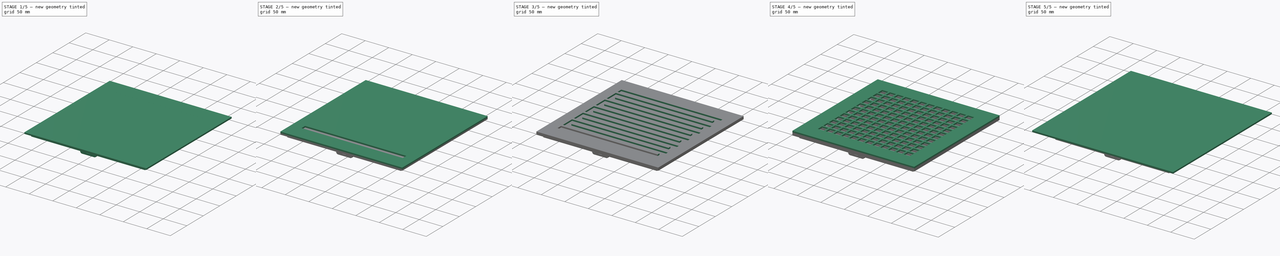
[diagram: build sequence overview — one tinted view per stage of 5, left to right]
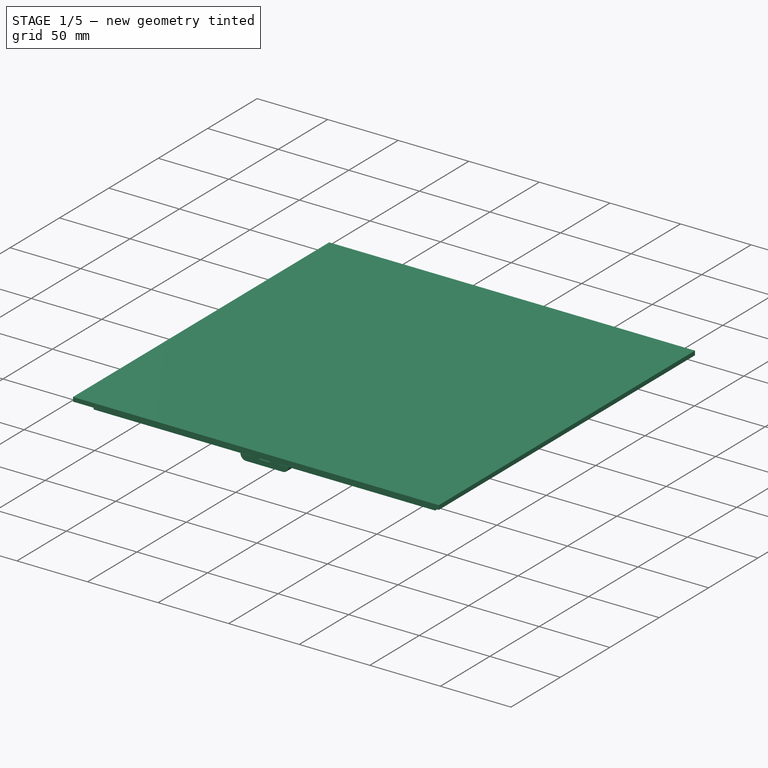
[diagram: stage 1 of 5 — iso view after this stage's code; geometry added in this stage tinted green]
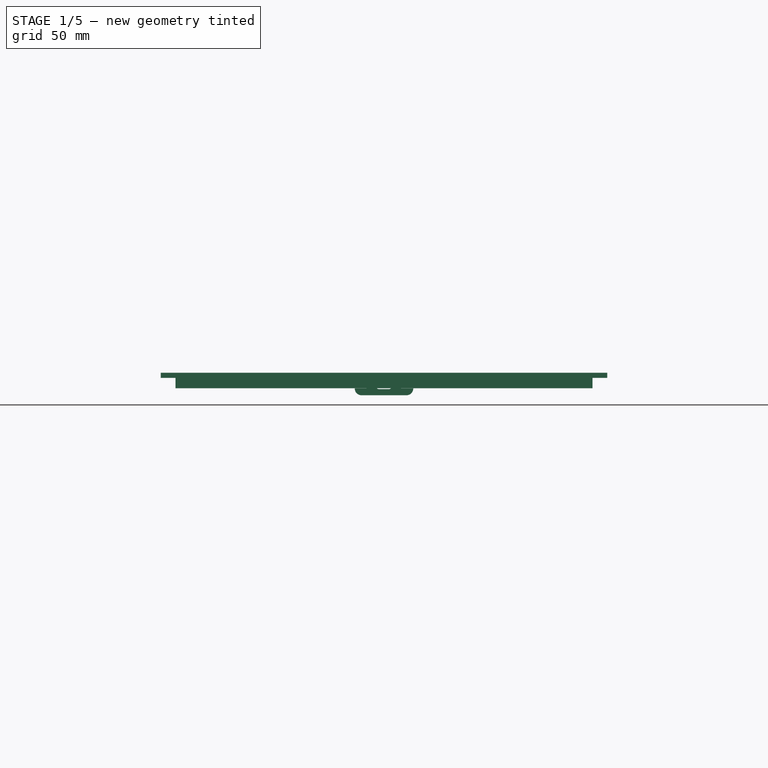
[diagram: stage 1 of 5 — front view after this stage's code; geometry added in this stage tinted green]
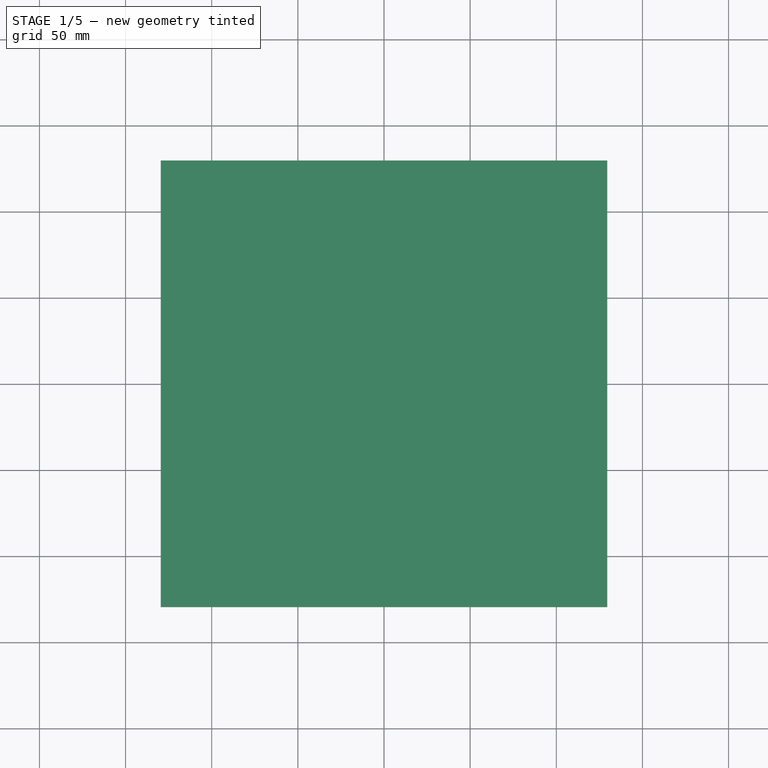
[diagram: stage 1 of 5 — top view after this stage's code; geometry added in this stage tinted green]
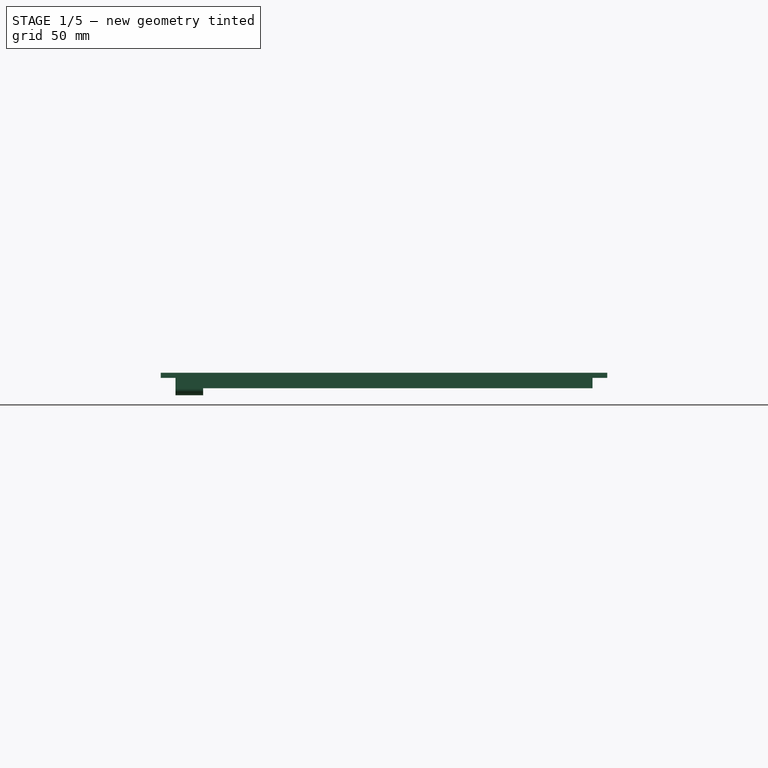
[diagram: stage 1 of 5 — right view after this stage's code; geometry added in this stage tinted green]
FCSTD DOCUMENT  (FreeCAD 0.20R29603 (Git))
Label: WordclockV2
License: All rights reserved
LicenseURL: http://en.wikipedia.org/wiki/All_rights_reserved
objects: Sketcher::SketchObject×17, Part::Part2DObjectPython×14, PartDesign::Pocket×9, PartDesign::Pad×8, PartDesign::Body×8, PartDesign::LinearPattern×8, PartDesign::MultiTransform×3, App::DocumentObjectGroup×3, Spreadsheet::Sheet×1, Part::FeaturePython×1
note: 84 computed .brp shape members not serialized (recipe doc carries the construction recipe); baked Part::Feature solids carry a one-line shape summary decoded from their .brp

FEATURE [Sketcher::SketchObject] Sketch007
  AttachmentOffset = pos=(0,0,-9) rot=(0,0,1;0rad)
  FullyConstrained = true
  MapMode = 5
  Placement = pos=(0,0,-9) rot=(0,0,1;0rad)
  Support = -> [XY_Plane004]
  expr: .Constraints.side = Spreadsheet.num_leds * Spreadsheet.led_gap + 2 * Spreadsheet.back_panel_padding
  expr: Constraints[10] = .Constraints.side / 2
  expr: Constraints[11] = .Constraints.side / 2
  sketch-geometry (4):
    g0: LineSegment StartX=129.6 StartY=-129.6 StartZ=0 EndX=-129.6 EndY=-129.6 EndZ=0
    g1: LineSegment StartX=-129.6 StartY=-129.6 StartZ=0 EndX=-129.6 EndY=129.6 EndZ=0
    g2: LineSegment StartX=-129.6 StartY=129.6 StartZ=0 EndX=129.6 EndY=129.6 EndZ=0
    g3: LineSegment StartX=129.6 StartY=129.6 StartZ=0 EndX=129.6 EndY=-129.6 EndZ=0
  constraints (12):
    c: Coincident(g0,g1)
    c: Coincident(g1,g2)
    c: Coincident(g2,g3)
    c: Coincident(g3,g0)
    c: Horizontal(g0)
    c: Horizontal(g2)
    c: Vertical(g1)
    c: Vertical(g3)
    c: Equal(g1,g2)
    c: DistanceX(g2,g2) = 259.2  'side'
    c: DistanceX(g0,g-1) = 129.6
    c: DistanceY(g-1,g2) = 129.6
FEATURE [PartDesign::Pad] Pad004
  Direction = (0,0,1)
  Length = 3
  Length2 = 10
  Profile = -> Sketch007
  ReferenceAxis = -> Sketch007 [N_Axis]
  Reversed = true
  Type = 0
FEATURE [Sketcher::SketchObject] Sketch008
  FullyConstrained = true
  MapMode = 5
  Support = -> [XY_Plane004]
  expr: .Constraints.origin = <<data_s>>.led_gap / 2 + (<<data_s>>.num_leds - 1) * <<data_s>>.led_gap / 2
  expr: Constraints[10] = <<data_s>>.led_strip_w / 2 + (<<data_s>>.num_leds - 1) * <<data_s>>.led_gap / 2
  expr: Constraints[11] = <<data_s>>.led_strip_w
  expr: Constraints[8] = <<data_s>>.led_gap * <<data_s>>.num_leds
  sketch-geometry (4):
    g0: LineSegment StartX=-99.6 StartY=96.3 StartZ=0 EndX=99.6 EndY=96.3 EndZ=0
    g1: LineSegment StartX=99.6 StartY=96.3 StartZ=0 EndX=99.6 EndY=86.3 EndZ=0
    g2: LineSegment StartX=99.6 StartY=86.3 StartZ=0 EndX=-99.6 EndY=86.3 EndZ=0
    g3: LineSegment StartX=-99.6 StartY=86.3 StartZ=0 EndX=-99.6 EndY=96.3 EndZ=0
  constraints (12):
    c: Coincident(g0,g1)
    c: Coincident(g1,g2)
    c: Coincident(g2,g3)
    c: Coincident(g3,g0)
    c: Horizontal(g0)
    c: Horizontal(g2)
    c: Vertical(g1)
    c: Vertical(g3)
    c: DistanceX(g2,g2) = 199.2
    c: DistanceX(g0,g-1) = 99.6  'origin'
    c: DistanceY(g-1,g0) = 96.3
    c: DistanceY(g1,g1) = 10
FEATURE [PartDesign::Pocket] Pocket003
  BaseFeature = -> Pad004
  Direction = (0,0,-1)
  Length = 5
  Length2 = 5
  Offset = 0.01
  Profile = -> Sketch008
  ReferenceAxis = -> Sketch008 [N_Axis]
  Type = 2
FEATURE [PartDesign::Body] Body004  label="plate_leds"
  Group = -> [Sketch007,Pad004,Sketch008,Pocket003,LinearPattern005,Sketch013,Pocket008]
  Origin = -> Origin004
  Tip = -> Pocket008
FEATURE [Part::Part2DObjectPython] Shape2DView001  # Draft 2D object (typed FeaturePython)
  AutoUpdate = true
  Base = -> Body004
  Clip = false
  FuseArch = false
  HiddenLines = false
  InPlace = true
  OnlySolids = false
  Placement = pos=(-631.07,52.85,0) rot=(0,0,1;0rad)
  Projection = (0,0,1)
  ProjectionMode = 0
  SegmentLength = 0.05
  Tessellation = false
  VisibleOnly = false
FEATURE [Part::Part2DObjectPython] Shape2DView003  # Draft 2D object (typed FeaturePython)
  AutoUpdate = true
  Base = -> Body002
  Clip = false
  FuseArch = false
  HiddenLines = false
  InPlace = true
  OnlySolids = false
  Placement = pos=(-631.221,316.119,-5.09646e-06) rot=(0,0,1;0rad)
  Projection = (0,8.74228e-08,-1)
  ProjectionMode = 0
  SegmentLength = 0.05
  Tessellation = false
  VisibleOnly = false
FEATURE [Sketcher::SketchObject] Sketch014
  AttachmentOffset = pos=(0,0,-12) rot=(0,0,1;0rad)
  FullyConstrained = true
  MapMode = 5
  Placement = pos=(0,0,-12) rot=(0,0,1;0rad)
  Support = -> [XY_Plane005]
  expr: Constraints[11] = <<data_s>>.screw_diameter
  expr: Constraints[12] = <<data_s>>.screw_dist
  expr: Constraints[13] = <<data_s>>.screw_dist
  sketch-geometry (16):
    g0: LineSegment StartX=-121 StartY=121 StartZ=0 EndX=121 EndY=121 EndZ=0
    g1: LineSegment StartX=121 StartY=121 StartZ=0 EndX=121 EndY=-121 EndZ=0
    g2: LineSegment StartX=121 StartY=-121 StartZ=0 EndX=-121 EndY=-121 EndZ=0
    g3: LineSegment StartX=-121 StartY=-121 StartZ=0 EndX=-121 EndY=121 EndZ=0
    g4: Circle CenterX=-112.5 CenterY=112.5 CenterZ=0 NormalX=0 NormalY=0 NormalZ=1 AngleXU=0 Radius=3
    g5: Circle CenterX=112.5 CenterY=112.5 CenterZ=0 NormalX=0 NormalY=0 NormalZ=1 AngleXU=0 Radius=3
    g6: Circle CenterX=-112.5 CenterY=-112.5 CenterZ=0 NormalX=0 NormalY=0 NormalZ=1 AngleXU=0 Radius=3
    g7: Circle CenterX=112.5 CenterY=-112.5 CenterZ=0 NormalX=0 NormalY=0 NormalZ=1 AngleXU=0 Radius=3
    g8: LineSegment StartX=-105 StartY=105 StartZ=0 EndX=-105 EndY=-105 EndZ=0
    g9: LineSegment StartX=-105 StartY=-105 StartZ=0 EndX=105 EndY=-105 EndZ=0
    g10: LineSegment StartX=105 StartY=-105 StartZ=0 EndX=105 EndY=105 EndZ=0
    g11: ArcOfCircle CenterX=-20 CenterY=105 CenterZ=0 NormalX=0 NormalY=0 NormalZ=1 AngleXU=0 Radius=5 StartAngle=1.5708 EndAngle=3.14159
    g12: ArcOfCircle CenterX=20 CenterY=105 CenterZ=0 NormalX=0 NormalY=0 NormalZ=1 AngleXU=0 Radius=5 StartAngle=4.716e-13 EndAngle=1.5708
    g13: LineSegment StartX=20 StartY=110 StartZ=0 EndX=-20 EndY=110 EndZ=0
    g14: LineSegment StartX=-105 StartY=105 StartZ=0 EndX=-25 EndY=105 EndZ=0
    g15: LineSegment StartX=25 StartY=105 StartZ=0 EndX=105 EndY=105 EndZ=0
  constraints (45):
    c: Coincident(g0,g1)
    c: Coincident(g1,g2)
    c: Coincident(g2,g3)
    c: Coincident(g3,g0)
    c: Horizontal(g0)
    c: Horizontal(g2)
    c: Vertical(g1)
    c: Vertical(g3)
    c: Equal(g0,g3)
    c: Distance(g0) = 242
    c: Symmetric(g0,g2,g-1)
    c: Diameter(g4) = 6
    c: DistanceX(g4,g-1) = 112.5
    c: DistanceY(g-1,g4) = 112.5
    c: Diameter(g5) = 6
    c: Diameter(g6) = 6
    c: Diameter(g7) = 6
    c: Coincident(g8,g9)
    c: Coincident(g9,g10)
    c: Horizontal(g9)
    c: Vertical(g8)
    c: Vertical(g10)
    c: Symmetric(g9,g8,g-1)
    c: Tangent(g12,g13) = -1.5708
    c: Tangent(g13,g11) = -1.5708
    c: Equal(g11,g12)
    c: Distance(g12,g12) = 5
    c: DistanceX(g-1,g12) = 20
    c: DistanceX(g11,g-1) = 20
    c: Symmetric(g7,g4,g-1)
    c: Horizontal(g5,g4)
    c: Vertical(g7,g5)
    c: Vertical(g4,g6)
    c: Horizontal(g6,g7)
    c: Distance(g8,g10) = 210
    c: Coincident(g14,g8)
    c: Coincident(g14,g11)
    c: Horizontal(g14)
    c: Coincident(g15,g12)
    c: Coincident(g15,g10)
    c: Horizontal(g15)
    c: Equal(g9,g8)
    c: Equal(g8,g10)
    c: Horizontal(g11,g11)
    c: Horizontal(g11,g12)
FEATURE [PartDesign::Pad] Pad005
  Direction = (0,0,1)
  Length = 3
  Length2 = 10
  Profile = -> Sketch014
  ReferenceAxis = -> Sketch014 [N_Axis]
  Reversed = true
  Type = 0
FEATURE [PartDesign::Body] Body005  label="back_frame_1"
  Group = -> [Sketch014,Pad005]
  Origin = -> Origin005
  Tip = -> Pad005
FEATURE [Part::Part2DObjectPython] Shape2DView004  # Draft 2D object (typed FeaturePython)
  AutoUpdate = true
  Base = -> Pad005
  Clip = false
  FaceNumbers = [13]
  FuseArch = false
  HiddenLines = false
  InPlace = true
  OnlySolids = false
  Placement = pos=(-628.696,578.623,5.05848e-05) rot=(0,0,1;0rad)
  Projection = (0,8.74228e-08,-1)
  ProjectionMode = 0
  SegmentLength = 0.05
  Tessellation = false
  VisibleOnly = false
FEATURE [Sketcher::SketchObject] Sketch015
  AttachmentOffset = pos=(0,0,-15) rot=(0,0,1;0rad)
  FullyConstrained = false
  MapMode = 5
  Placement = pos=(0,0,-15) rot=(0,0,1;0rad)
  Support = -> [XY_Plane006]
  expr: Constraints[11] = <<data_s>>.screw_diameter
  expr: Constraints[12] = <<data_s>>.screw_dist
  expr: Constraints[13] = <<data_s>>.screw_dist
  sketch-geometry (12):
    g0: LineSegment StartX=-121 StartY=121 StartZ=0 EndX=121 EndY=121 EndZ=0
    g1: LineSegment StartX=121 StartY=121 StartZ=0 EndX=121 EndY=-121 EndZ=0
    g2: LineSegment StartX=121 StartY=-121 StartZ=0 EndX=-121 EndY=-121 EndZ=0
    g3: LineSegment StartX=-121 StartY=-121 StartZ=0 EndX=-121 EndY=121 EndZ=0
    g4: Circle CenterX=-112.5 CenterY=112.5 CenterZ=0 NormalX=0 NormalY=0 NormalZ=1 AngleXU=0 Radius=3
    g5: Circle CenterX=112.5 CenterY=112.5 CenterZ=0 NormalX=0 NormalY=0 NormalZ=1 AngleXU=0 Radius=3
    g6: Circle CenterX=-112.5 CenterY=-112.5 CenterZ=0 NormalX=0 NormalY=0 NormalZ=1 AngleXU=0 Radius=3
    g7: Circle CenterX=112.5 CenterY=-112.5 CenterZ=0 NormalX=0 NormalY=0 NormalZ=1 AngleXU=0 Radius=3
    g8: LineSegment StartX=105 StartY=105 StartZ=0 EndX=-105 EndY=105 EndZ=0
    g9: LineSegment StartX=-105 StartY=105 StartZ=0 EndX=-105 EndY=-105 EndZ=0
    g10: LineSegment StartX=-105 StartY=-105 StartZ=0 EndX=105 EndY=-105 EndZ=0
    g11: LineSegment StartX=105 StartY=-105 StartZ=0 EndX=105 EndY=105 EndZ=0
  constraints (28):
    c: Coincident(g0,g1)
    c: Coincident(g1,g2)
    c: Coincident(g2,g3)
    c: Coincident(g3,g0)
    c: Horizontal(g0)
    c: Horizontal(g2)
    c: Vertical(g1)
    c: Vertical(g3)
    c: Equal(g0,g3)
    c: Distance(g0) = 242
    c: Symmetric(g0,g2,g-1)
    c: Diameter(g4) = 6
    c: DistanceX(g4,g-1) = 112.5
    c: DistanceY(g-1,g4) = 112.5
    c: Diameter(g5) = 6
    c: Diameter(g6) = 6
    c: Diameter(g7) = 6
    c: Coincident(g8,g9)
    c: Coincident(g9,g10)
    c: Coincident(g10,g11)
    c: Coincident(g11,g8)
    c: Horizontal(g8)
    c: Horizontal(g10)
    c: Vertical(g9)
    c: Vertical(g11)
    c: Distance(g8) = 210
    c: Equal(g8,g11)
    c: Symmetric(g10,g8,g-1)
FEATURE [PartDesign::Pad] Pad006
  Direction = (0,0,1)
  Length = 3
  Length2 = 10
  Profile = -> Sketch015
  ReferenceAxis = -> Sketch015 [N_Axis]
  Reversed = true
  Type = 0
FEATURE [PartDesign::Body] Body006  label="back_frame_2"
  Group = -> [Sketch015,Pad006]
  Origin = -> Origin006
  Tip = -> Pad006
FEATURE [Part::Part2DObjectPython] Shape2DView005  # Draft 2D object (typed FeaturePython)
  AutoUpdate = true
  Base = -> Body006
  Clip = false
  FuseArch = false
  HiddenLines = false
  InPlace = true
  OnlySolids = false
  Placement = pos=(-369.989,576.908,0) rot=(0,0,1;0rad)
  Projection = (0,0,1)
  ProjectionMode = 0
  SegmentLength = 0.05
  Tessellation = false
  VisibleOnly = false
FEATURE [Part::Part2DObjectPython] Shape2DView006  # Draft 2D object (typed FeaturePython)
  AutoUpdate = true
  Base = -> Body
  Clip = false
  FuseArch = false
  HiddenLines = false
  InPlace = true
  OnlySolids = false
  Projection = (0.57735,0.57735,0.57735)
  ProjectionMode = 0
  SegmentLength = 0.05
  Tessellation = false
  VisibleOnly = false
FEATURE [Part::Part2DObjectPython] Shape2DView007  # Draft 2D object (typed FeaturePython)
  AutoUpdate = true
  Base = -> Body001
  Clip = false
  FuseArch = false
  HiddenLines = false
  InPlace = true
  OnlySolids = false
  Projection = (0.57735,0.57735,0.57735)
  ProjectionMode = 0
  SegmentLength = 0.05
  Tessellation = false
  VisibleOnly = false
FEATURE [Part::Part2DObjectPython] Shape2DView008  # Draft 2D object (typed FeaturePython)
  AutoUpdate = true
  Base = -> Body002
  Clip = false
  FuseArch = false
  HiddenLines = false
  InPlace = true
  OnlySolids = false
  Projection = (0.57735,0.57735,0.57735)
  ProjectionMode = 0
  SegmentLength = 0.05
  Tessellation = false
  VisibleOnly = false
FEATURE [Part::Part2DObjectPython] Shape2DView009  # Draft 2D object (typed FeaturePython)
  AutoUpdate = true
  Base = -> Body003
  Clip = false
  FuseArch = false
  HiddenLines = false
  InPlace = true
  OnlySolids = false
  Projection = (0.57735,0.57735,0.57735)
  ProjectionMode = 0
  SegmentLength = 0.05
  Tessellation = false
  VisibleOnly = false
FEATURE [Part::Part2DObjectPython] Shape2DView010  # Draft 2D object (typed FeaturePython)
  AutoUpdate = true
  Base = -> Body004
  Clip = false
  FuseArch = false
  HiddenLines = false
  InPlace = true
  OnlySolids = false
  Projection = (0.57735,0.57735,0.57735)
  ProjectionMode = 0
  SegmentLength = 0.05
  Tessellation = false
  VisibleOnly = false
FEATURE [Part::Part2DObjectPython] Shape2DView011  # Draft 2D object (typed FeaturePython)
  AutoUpdate = true
  Base = -> Body005
  Clip = false
  FuseArch = false
  HiddenLines = false
  InPlace = true
  OnlySolids = false
  Projection = (0.57735,0.57735,0.57735)
  ProjectionMode = 0
  SegmentLength = 0.05
  Tessellation = false
  VisibleOnly = false
FEATURE [Part::Part2DObjectPython] Shape2DView012  # Draft 2D object (typed FeaturePython)
  AutoUpdate = true
  Base = -> Body006
  Clip = false
  FuseArch = false
  HiddenLines = false
  InPlace = true
  OnlySolids = false
  Projection = (0.57735,0.57735,0.57735)
  ProjectionMode = 0
  SegmentLength = 0.05
  Tessellation = false
  VisibleOnly = false
FEATURE [App::DocumentObjectGroup] Group001  label="Iso view export"
  Group = -> [Shape2DView006,Shape2DView007,Shape2DView008,Shape2DView009,Shape2DView010,Shape2DView011,Shape2DView012]
FEATURE [Sketcher::SketchObject] Sketch016
  AttachmentOffset = pos=(0,0,105) rot=(0,0,1;0rad)
  FullyConstrained = true
  MapMode = 5
  Placement = pos=(0,-105,2.33e-14) rot=(1,0,0;1.5708rad)
  Support = -> [XZ_Plane007]
  sketch-geometry (12):
    g0: LineSegment StartX=-10 StartY=-12 StartZ=0 EndX=10 EndY=-12 EndZ=0
    g1: LineSegment StartX=10 StartY=-12 StartZ=0 EndX=10 EndY=-18.1 EndZ=0
    g2: LineSegment StartX=10 StartY=-18.1 StartZ=0 EndX=17 EndY=-18.1 EndZ=0
    g3: LineSegment StartX=-10 StartY=-12 StartZ=0 EndX=-10 EndY=-18.1 EndZ=0
    g4: LineSegment StartX=-10 StartY=-18.1 StartZ=0 EndX=-17 EndY=-18.1 EndZ=0
    g5: ArcOfCircle CenterX=-13 CenterY=-18.1 CenterZ=0 NormalX=0 NormalY=0 NormalZ=1 AngleXU=0 Radius=4 StartAngle=3.14159 EndAngle=4.71239
    g6: ArcOfCircle CenterX=13 CenterY=-18.1 CenterZ=0 NormalX=0 NormalY=0 NormalZ=1 AngleXU=0 Radius=4 StartAngle=4.71239 EndAngle=6.28319
    g7: LineSegment StartX=-13 StartY=-22.1 StartZ=0 EndX=13 EndY=-22.1 EndZ=0
    g8: ArcOfCircle CenterX=-3 CenterY=-17 CenterZ=0 NormalX=0 NormalY=0 NormalZ=1 AngleXU=0 Radius=1.5 StartAngle=1.5708 EndAngle=4.71239
    g9: ArcOfCircle CenterX=3 CenterY=-17 CenterZ=0 NormalX=0 NormalY=0 NormalZ=1 AngleXU=0 Radius=1.5 StartAngle=4.71239 EndAngle=7.85398
    g10: LineSegment StartX=-3 StartY=-18.5 StartZ=0 EndX=3 EndY=-18.5 EndZ=0
    g11: LineSegment StartX=3 StartY=-15.5 StartZ=0 EndX=-3 EndY=-15.5 EndZ=0
  constraints (36):
    c: Horizontal(g0)
    c: Coincident(g1,g0)
    c: Coincident(g2,g1)
    c: Horizontal(g2)
    c: Coincident(g3,g0)
    c: Vertical(g3)
    c: Coincident(g4,g3)
    c: Horizontal(g4)
    c: PointOnObject(g5,g4)
    c: Coincident(g5,g4)
    c: Vertical(g5,g5)
    c: PointOnObject(g6,g2)
    c: Coincident(g6,g2)
    c: Vertical(g6,g6)
    c: Vertical(g1)
    c: Horizontal(g3,g1)
    c: Distance(g0) = 20
    c: Distance(g4) = 7
    c: Equal(g2,g4)
    c: Coincident(g7,g5)
    c: Coincident(g7,g6)
    c: Horizontal(g7)
    c: DistanceY(g6,g6) = 4
    c: Distance(g3) = 6.1
    c: Tangent(g8,g10) = -1.5708
    c: Tangent(g10,g9) = -1.5708
    c: Tangent(g9,g11) = -1.5708
    c: Tangent(g11,g8) = -1.5708
    c: Equal(g8,g9)
    c: Horizontal(g10)
    c: Distance(g9,g9) = 3
    c: DistanceY(g8,g0) = 5
    c: DistanceX(g0,g8) = 7
    c: Distance(g10) = 6
    c: DistanceY(g0,g-1) = 12
    c: DistanceX(g-1,g0) = 10
FEATURE [PartDesign::Pad] Pad007
  Direction = (0,-1,2e-16)
  Length = 16
  Length2 = 10
  Placement = pos=(0,0,0) rot=(1,0,0;1.5708rad)
  Profile = -> Sketch016
  ReferenceAxis = -> Sketch016 [N_Axis]
  Type = 0
FEATURE [PartDesign::Body] Body007  label="usb_pad"
  Group = -> [Sketch016,Pad007]
  Origin = -> Origin007
  Tip = -> Pad007
FEATURE [App::DocumentObjectGroup] Group002  label="Body"
  Group = -> [Body,Body001,Body002,Body003,Body004,Body005,Body006,Body007]
FEATURE [Part::Part2DObjectPython] Shape2DView013  label="usb_pad001"  # Draft 2D object (typed FeaturePython)
  AutoUpdate = true
  Base = -> Body007
  Clip = false
  FuseArch = false
  HiddenLines = false
  InPlace = true
  OnlySolids = false
  Projection = (7.4e-15,-1,1.68587e-07)
  ProjectionMode = 0
  SegmentLength = 0.05
  Tessellation = false
  VisibleOnly = false
FEATURE [Part::FeaturePython] Array  # Draft array (typed FeaturePython)
  AlwaysSyncPlacement = false
  Angle = 360
  ArrayType = 0
  Axis = (0,0,1)
  Base = -> Shape2DView013
  Center = (0,0,0)
  Count = 5
  ExpandArray = false
  Fuse = false
  IntervalAxis = (0,0,0)
  IntervalX = (12,0,0)
  IntervalY = (0,10,-1)
  IntervalZ = (0,0,100)
  NumberCircles = 3
  NumberPolar = 5
  NumberX = 5
  NumberY = 1
  NumberZ = 1
  PlacementList = 5 placements: arithmetic series from (0,0,0) step (12,0,0) to (48,0,0)
  RadialDistance = 50
  ScaleList = (5) [(1,1,1),(1,1,1),(1,1,1),(1,1,1),(1,1,1)]
  Symmetry = 1
  TangentialDistance = 25
FEATURE [App::DocumentObjectGroup] Group  label="Shapes for DXF export"
  Group = -> [Shape2DView,Shape2DView001,Shape2DView002,Shape2DView003,Shape2DView004,Shape2DView005,Shape2DView013,Array]
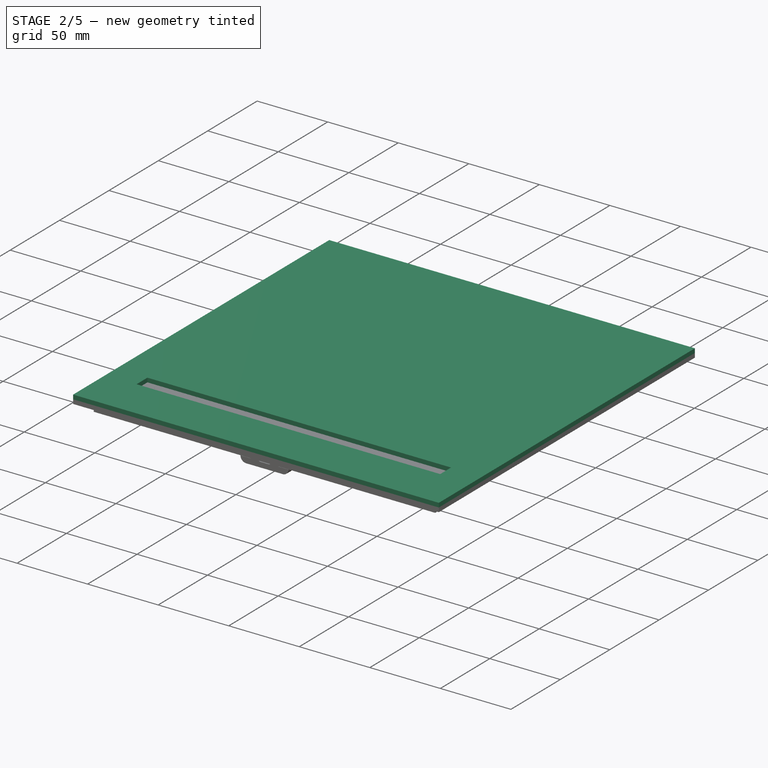
[diagram: stage 2 of 5 — iso view after this stage's code; geometry added in this stage tinted green]
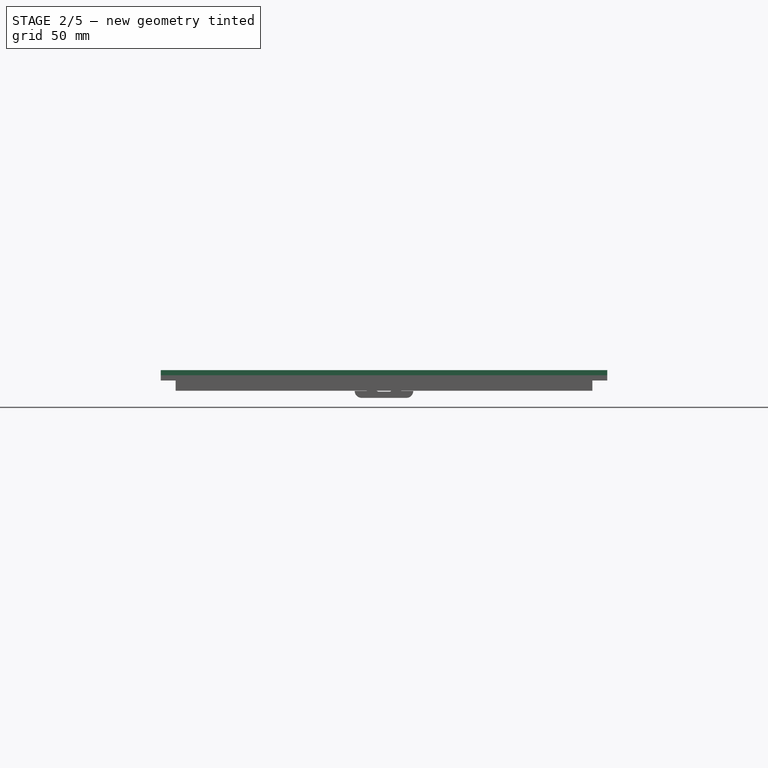
[diagram: stage 2 of 5 — front view after this stage's code; geometry added in this stage tinted green]
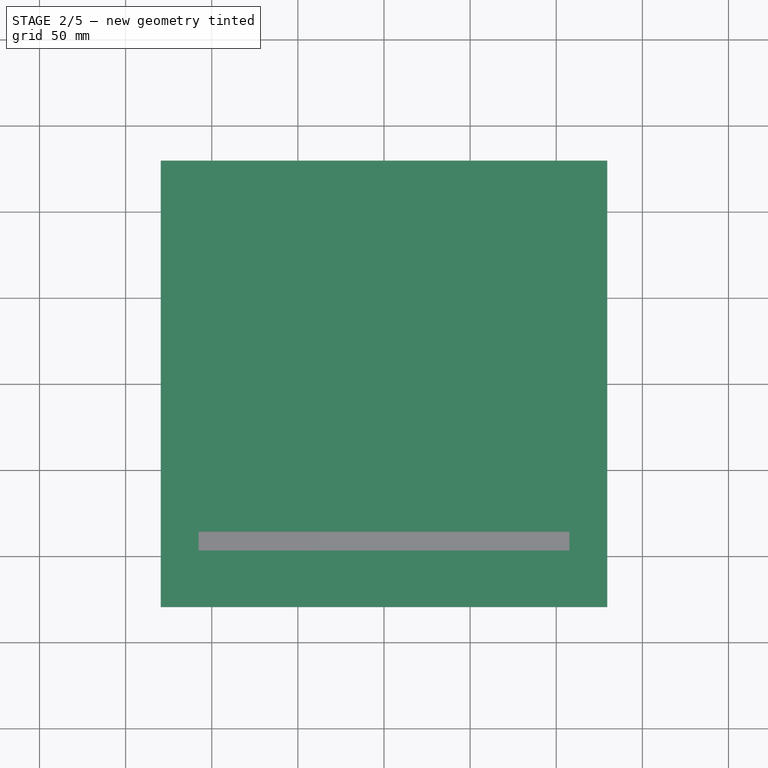
[diagram: stage 2 of 5 — top view after this stage's code; geometry added in this stage tinted green]
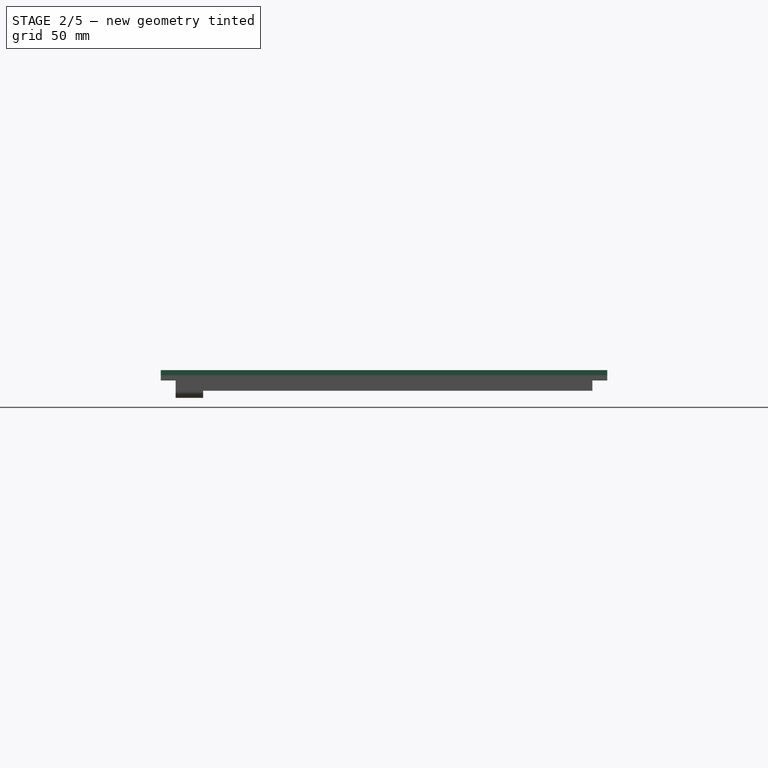
[diagram: stage 2 of 5 — right view after this stage's code; geometry added in this stage tinted green]
FEATURE [Sketcher::SketchObject] Sketch005
  AttachmentOffset = pos=(0,0,-6) rot=(0,0,1;0rad)
  FullyConstrained = true
  MapMode = 5
  Placement = pos=(0,0,-6) rot=(0,0,1;0rad)
  Support = -> [XY_Plane003]
  expr: .Constraints.side = Spreadsheet.num_leds * Spreadsheet.led_gap + 2 * Spreadsheet.back_panel_padding
  expr: Constraints[10] = .Constraints.side / 2
  expr: Constraints[11] = .Constraints.side / 2
  sketch-geometry (4):
    g0: LineSegment StartX=129.6 StartY=-129.6 StartZ=0 EndX=-129.6 EndY=-129.6 EndZ=0
    g1: LineSegment StartX=-129.6 StartY=-129.6 StartZ=0 EndX=-129.6 EndY=129.6 EndZ=0
    g2: LineSegment StartX=-129.6 StartY=129.6 StartZ=0 EndX=129.6 EndY=129.6 EndZ=0
    g3: LineSegment StartX=129.6 StartY=129.6 StartZ=0 EndX=129.6 EndY=-129.6 EndZ=0
  constraints (12):
    c: Coincident(g0,g1)
    c: Coincident(g1,g2)
    c: Coincident(g2,g3)
    c: Coincident(g3,g0)
    c: Horizontal(g0)
    c: Horizontal(g2)
    c: Vertical(g1)
    c: Vertical(g3)
    c: Equal(g1,g2)
    c: DistanceX(g2,g2) = 259.2  'side'
    c: DistanceX(g0,g-1) = 129.6
    c: DistanceY(g-1,g2) = 129.6
FEATURE [PartDesign::Pad] Pad003
  Direction = (0,0,1)
  Length = 3
  Length2 = 10
  Profile = -> Sketch005
  ReferenceAxis = -> Sketch005 [N_Axis]
  Reversed = true
  Type = 0
FEATURE [Sketcher::SketchObject] Sketch006
  FullyConstrained = true
  MapMode = 5
  Placement = pos=(0,0,-9) rot=(1,0,0;3.14159rad)
  Support = -> [Pad003]
  expr: .Constraints.origin = <<data_s>>.led_gap / 2 + (<<data_s>>.num_leds - 1) * <<data_s>>.led_gap / 2 + <<data_s>>.led_strip_end_pad
  expr: Constraints[10] = <<data_s>>.led_strip_w_pad / 2 + (<<data_s>>.num_leds - 1) * <<data_s>>.led_gap / 2
  expr: Constraints[11] = <<data_s>>.led_strip_w_pad
  expr: Constraints[8] = <<data_s>>.led_gap * <<data_s>>.num_leds + <<data_s>>.led_strip_end_pad * 2
  sketch-geometry (4):
    g0: LineSegment StartX=-107.6 StartY=96.8 StartZ=0 EndX=107.6 EndY=96.8 EndZ=0
    g1: LineSegment StartX=107.6 StartY=96.8 StartZ=0 EndX=107.6 EndY=85.8 EndZ=0
    g2: LineSegment StartX=107.6 StartY=85.8 StartZ=0 EndX=-107.6 EndY=85.8 EndZ=0
    g3: LineSegment StartX=-107.6 StartY=85.8 StartZ=0 EndX=-107.6 EndY=96.8 EndZ=0
  constraints (12):
    c: Coincident(g0,g1)
    c: Coincident(g1,g2)
    c: Coincident(g2,g3)
    c: Coincident(g3,g0)
    c: Horizontal(g0)
    c: Horizontal(g2)
    c: Vertical(g1)
    c: Vertical(g3)
    c: DistanceX(g2,g2) = 215.2
    c: DistanceX(g0,g-1) = 107.6  'origin'
    c: DistanceY(g-1,g0) = 96.8
    c: DistanceY(g1,g1) = 11
FEATURE [PartDesign::Pocket] Pocket002
  BaseFeature = -> Pad003
  Direction = (0,0,1)
  Length = 5
  Length2 = 5
  Profile = -> Sketch006
  ReferenceAxis = -> Sketch006 [N_Axis]
  Type = 1
FEATURE [PartDesign::LinearPattern] LinearPattern005
  BaseFeature = -> Pocket003
  Direction = -> Y_Axis004
  Length = 182.6
  Occurrences = 12
  Originals = -> [Pocket003]
  Reversed = true
  expr: Length = (<<data_s>>.num_leds - 1) * <<data_s>>.led_gap
  expr: Occurrences = <<data_s>>.num_leds
FEATURE [PartDesign::Body] Body003  label="plate_led_snake"
  Group = -> [Sketch005,Pad003,Sketch006,Pocket002,LinearPattern004,Sketch009,Pocket004,MultiTransform002,LinearPattern006,Sketch010,Pocket005,LinearPattern007,Sketch012,Pocket007]
  Origin = -> Origin003
  Tip = -> Pocket007
FEATURE [Part::Part2DObjectPython] Shape2DView002  # Draft 2D object (typed FeaturePython)
  AutoUpdate = true
  Base = -> Body003
  Clip = false
  FuseArch = false
  HiddenLines = false
  InPlace = true
  OnlySolids = false
  Placement = pos=(-367.682,320.128,0) rot=(0,0,1;0rad)
  Projection = (0,0,1)
  ProjectionMode = 0
  SegmentLength = 0.05
  Tessellation = false
  VisibleOnly = false
FEATURE [Sketcher::SketchObject] Sketch013
  FullyConstrained = true
  MapMode = 5
  Support = -> [XY_Plane004]
  expr: .Constraints.screw_dist = <<data_s>>.screw_dist
  expr: Constraints[0] = <<data_s>>.screw_diameter / 2
  expr: Constraints[10] = .Constraints.screw_dist
  expr: Constraints[11] = <<data_s>>.screw_diameter / 2
  expr: Constraints[2] = .Constraints.screw_dist
  expr: Constraints[3] = <<data_s>>.screw_diameter / 2
  expr: Constraints[4] = .Constraints.screw_dist
  expr: Constraints[5] = .Constraints.screw_dist
  expr: Constraints[7] = .Constraints.screw_dist
  expr: Constraints[8] = .Constraints.screw_dist
  expr: Constraints[9] = .Constraints.screw_dist
  sketch-geometry (4):
    g0: Circle CenterX=-112.5 CenterY=112.5 CenterZ=0 NormalX=0 NormalY=0 NormalZ=1 AngleXU=0 Radius=3
    g1: Circle CenterX=112.5 CenterY=112.5 CenterZ=0 NormalX=0 NormalY=0 NormalZ=1 AngleXU=0 Radius=3
    g2: Circle CenterX=112.5 CenterY=-112.5 CenterZ=0 NormalX=0 NormalY=0 NormalZ=1 AngleXU=0 Radius=3
    g3: Circle CenterX=-112.5 CenterY=-112.5 CenterZ=0 NormalX=0 NormalY=0 NormalZ=1 AngleXU=0 Radius=3
  constraints (12):
    c: Radius(g0) = 3
    c: DistanceX(g0,g-1) = 112.5  'screw_dist'
    c: DistanceY(g-1,g0) = 112.5
    c: Radius(g1) = 3
    c: DistanceX(g-1,g1) = 112.5
    c: DistanceY(g-1,g1) = 112.5
    c: Equal(g1,g2) = 3
    c: DistanceX(g-1,g2) = 112.5
    c: DistanceY(g2,g-1) = 112.5
    c: DistanceX(g3,g-1) = 112.5
    c: DistanceY(g3,g-1) = 112.5
    c: Radius(g3) = 3
FEATURE [PartDesign::Pocket] Pocket008
  BaseFeature = -> LinearPattern005
  Direction = (0,0,-1)
  Length = 5
  Length2 = 5
  Profile = -> Sketch013
  ReferenceAxis = -> Sketch013 [N_Axis]
  Type = 1
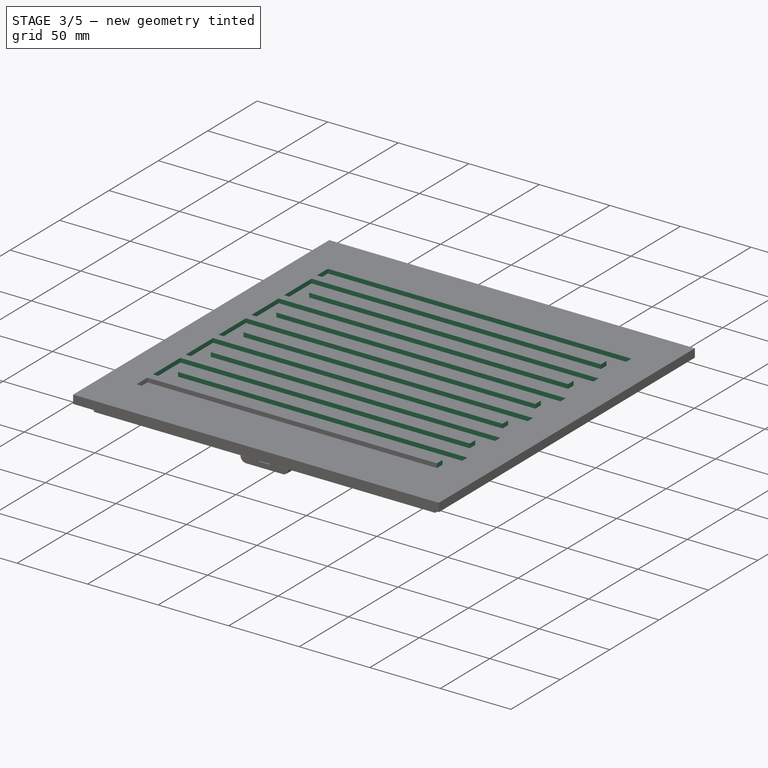
[diagram: stage 3 of 5 — iso view after this stage's code; geometry added in this stage tinted green]
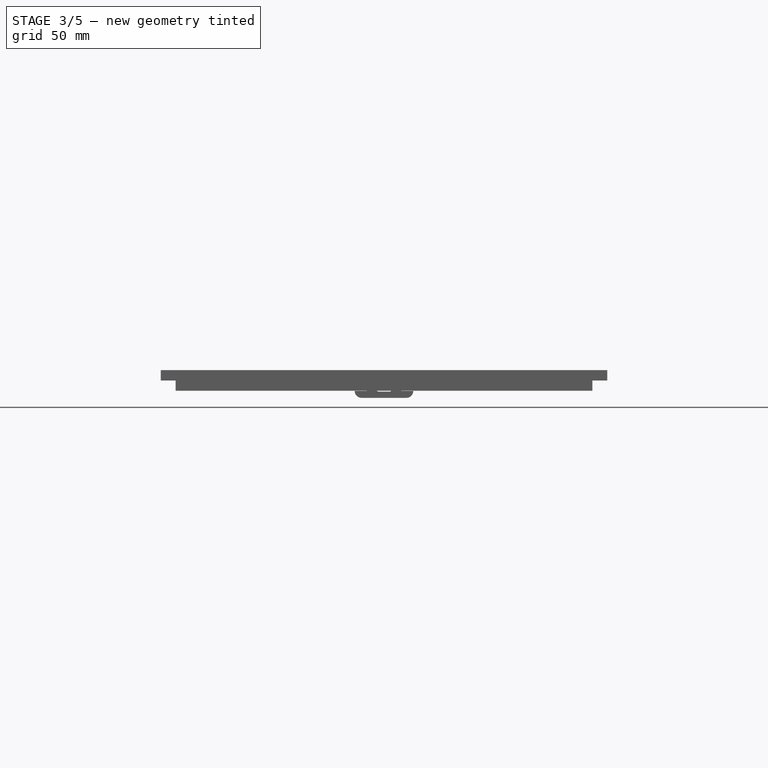
[diagram: stage 3 of 5 — front view after this stage's code; geometry added in this stage tinted green]
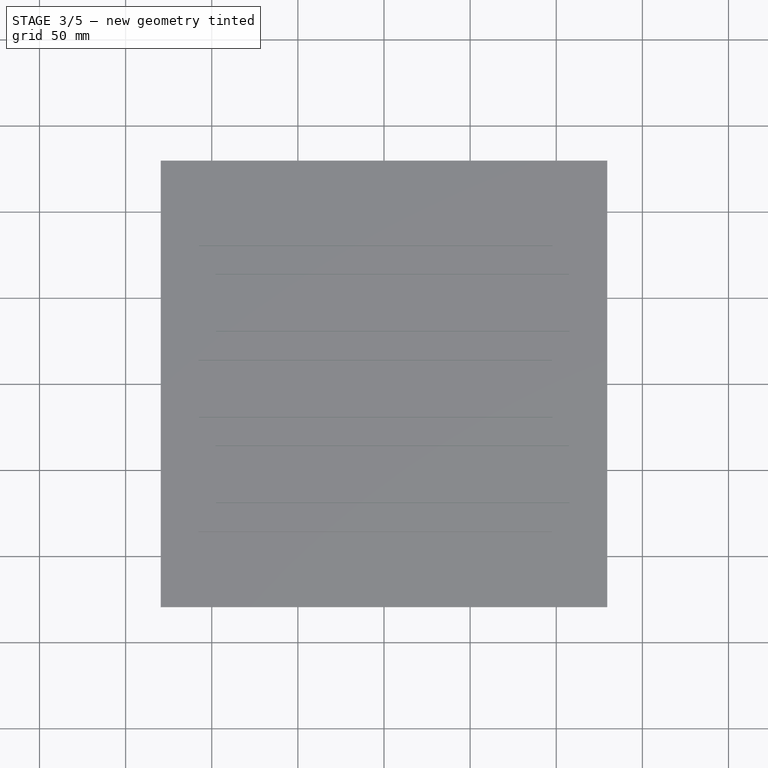
[diagram: stage 3 of 5 — top view after this stage's code; geometry added in this stage tinted green]
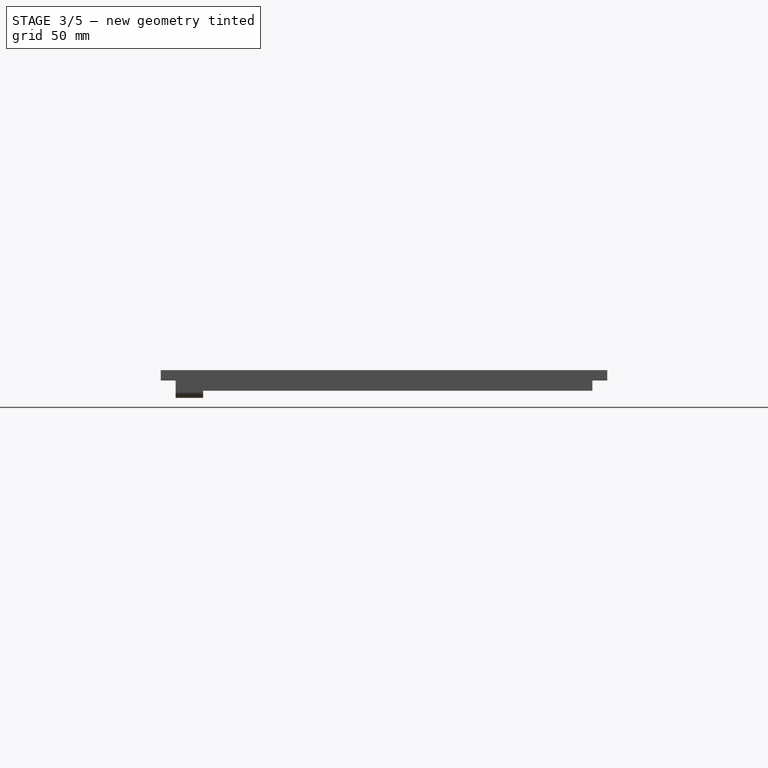
[diagram: stage 3 of 5 — right view after this stage's code; geometry added in this stage tinted green]
FEATURE [PartDesign::LinearPattern] LinearPattern004
  BaseFeature = -> Pocket002
  Direction = -> Y_Axis003
  Length = 182.6
  Occurrences = 12
  Originals = -> [Pocket002]
  expr: Length = (<<data_s>>.num_leds - 1) * <<data_s>>.led_gap
  expr: Occurrences = <<data_s>>.num_leds
FEATURE [Part::Part2DObjectPython] Shape2DView  # Draft 2D object (typed FeaturePython)
  AutoUpdate = true
  Base = -> Body001
  Clip = false
  FuseArch = false
  HiddenLines = false
  InPlace = true
  OnlySolids = false
  Placement = pos=(-367.98,53.99,0) rot=(0,0,1;0rad)
  Projection = (0,8.74228e-08,-1)
  ProjectionMode = 0
  SegmentLength = 0.05
  Tessellation = false
  VisibleOnly = false
FEATURE [Sketcher::SketchObject] Sketch009
  FullyConstrained = true
  MapMode = 5
  Support = -> [XY_Plane003]
  expr: Constraints[10] = <<data_s>>.led_strip_w_pad + <<data_s>>.led_gap
  expr: Constraints[11] = <<data_s>>.strip_end_thickness
  expr: Constraints[8] = <<data_s>>.led_gap / 2 + (<<data_s>>.num_leds - 1) * <<data_s>>.led_gap / 2 + <<data_s>>.led_strip_end_pad
  expr: Constraints[9] = <<data_s>>.led_strip_w_pad / 2 + (<<data_s>>.num_leds - 1) * <<data_s>>.led_gap / 2
  sketch-geometry (4):
    g0: LineSegment StartX=107.6 StartY=96.8 StartZ=0 EndX=97.6 EndY=96.8 EndZ=0
    g1: LineSegment StartX=97.6 StartY=96.8 StartZ=0 EndX=97.6 EndY=69.2 EndZ=0
    g2: LineSegment StartX=97.6 StartY=69.2 StartZ=0 EndX=107.6 EndY=69.2 EndZ=0
    g3: LineSegment StartX=107.6 StartY=69.2 StartZ=0 EndX=107.6 EndY=96.8 EndZ=0
  constraints (12):
    c: Coincident(g0,g1)
    c: Coincident(g1,g2)
    c: Coincident(g2,g3)
    c: Coincident(g3,g0)
    c: Horizontal(g0)
    c: Horizontal(g2)
    c: Vertical(g1)
    c: Vertical(g3)
    c: DistanceX(g-1,g0) = 107.6
    c: DistanceY(g-1,g0) = 96.8
    c: Distance(g3) = 27.6
    c: Distance(g2) = 10
FEATURE [PartDesign::Pocket] Pocket004
  BaseFeature = -> LinearPattern004
  Direction = (0,0,-1)
  Length = 5
  Length2 = 5
  Profile = -> Sketch009
  ReferenceAxis = -> Sketch009 [N_Axis]
  Type = 1
FEATURE [PartDesign::LinearPattern] LinearPattern006
  Direction = -> Sketch009 [V_Axis]
  Length = 166
  Occurrences = 6
  Reversed = true
  expr: Length = <<data_s>>.led_gap * 10
FEATURE [PartDesign::MultiTransform] MultiTransform002
  BaseFeature = -> Pocket004
  Originals = -> [Pocket004]
  Transformations = -> [LinearPattern006]
FEATURE [Sketcher::SketchObject] Sketch010
  FullyConstrained = true
  MapMode = 5
  Support = -> [XY_Plane003]
  expr: Constraints[10] = <<data_s>>.led_strip_w_pad + <<data_s>>.led_gap
  expr: Constraints[11] = <<data_s>>.strip_end_thickness
  expr: Constraints[8] = -(<<data_s>>.led_gap / 2 + (<<data_s>>.num_leds - 1) * <<data_s>>.led_gap / 2 + <<data_s>>.led_strip_end_pad)
  expr: Constraints[9] = <<data_s>>.led_strip_w_pad / 2 + (<<data_s>>.num_leds - 3) * <<data_s>>.led_gap / 2
  sketch-geometry (4):
    g0: LineSegment StartX=-107.6 StartY=80.2 StartZ=0 EndX=-97.6 EndY=80.2 EndZ=0
    g1: LineSegment StartX=-97.6 StartY=80.2 StartZ=0 EndX=-97.6 EndY=52.6 EndZ=0
    g2: LineSegment StartX=-97.6 StartY=52.6 StartZ=0 EndX=-107.6 EndY=52.6 EndZ=0
    g3: LineSegment StartX=-107.6 StartY=52.6 StartZ=0 EndX=-107.6 EndY=80.2 EndZ=0
  constraints (12):
    c: Coincident(g0,g1)
    c: Coincident(g1,g2)
    c: Coincident(g2,g3)
    c: Coincident(g3,g0)
    c: Horizontal(g0)
    c: Horizontal(g2)
    c: Vertical(g1)
    c: Vertical(g3)
    c: DistanceX(g-1,g0) = -107.6
    c: DistanceY(g-1,g0) = 80.2
    c: Distance(g3) = 27.6
    c: Distance(g2) = 10
FEATURE [PartDesign::Pocket] Pocket005
  BaseFeature = -> MultiTransform002
  Direction = (0,0,-1)
  Length = 5
  Length2 = 5
  Profile = -> Sketch010
  ReferenceAxis = -> Sketch010 [N_Axis]
  Type = 1
FEATURE [PartDesign::LinearPattern] LinearPattern007
  BaseFeature = -> Pocket005
  Direction = -> Sketch010 [V_Axis]
  Length = 132.8
  Occurrences = 5
  Originals = -> [Pocket005]
  Reversed = true
  expr: Length = <<data_s>>.led_gap * 8
  expr: Occurrences = 5
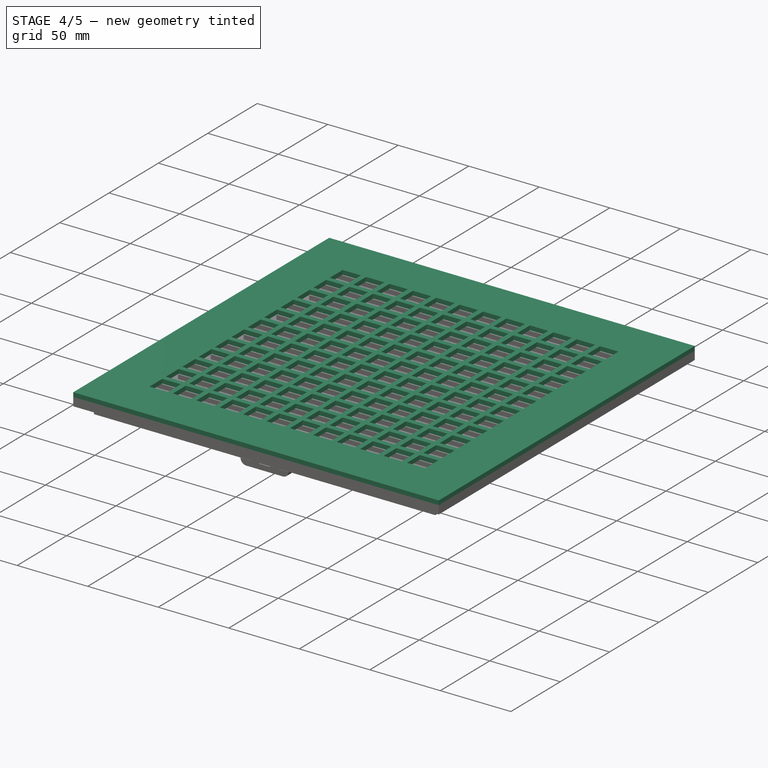
[diagram: stage 4 of 5 — iso view after this stage's code; geometry added in this stage tinted green]
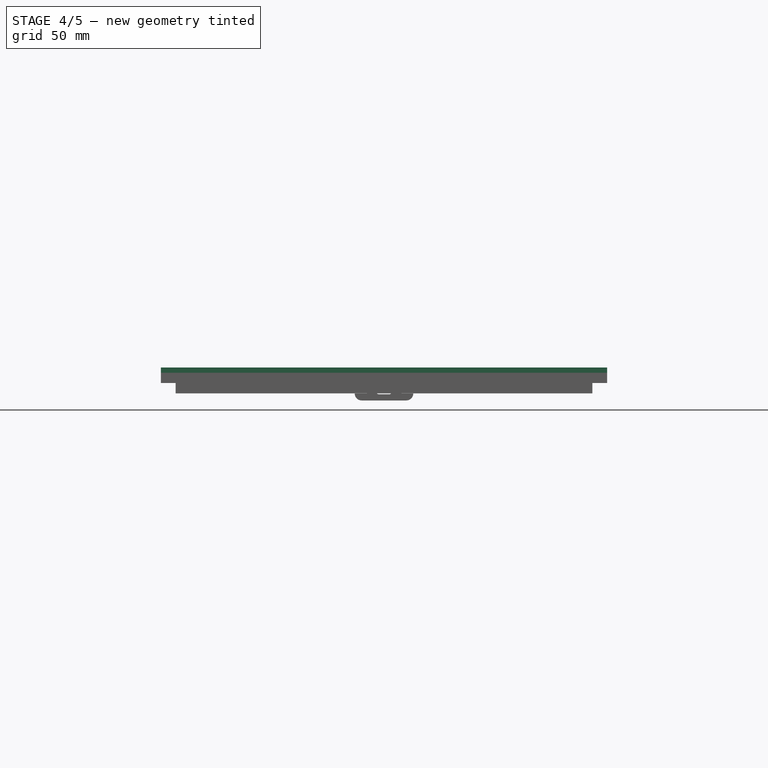
[diagram: stage 4 of 5 — front view after this stage's code; geometry added in this stage tinted green]
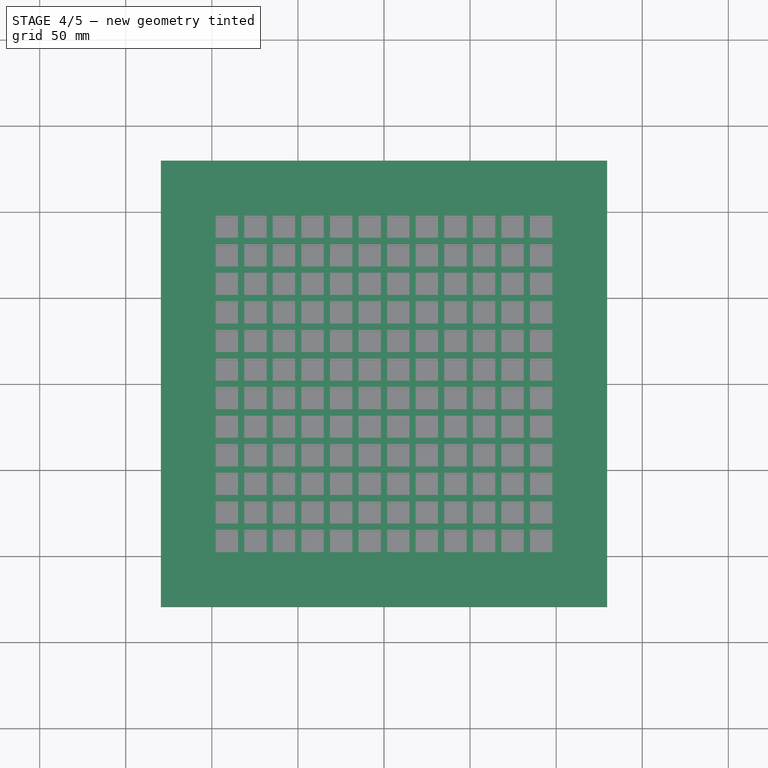
[diagram: stage 4 of 5 — top view after this stage's code; geometry added in this stage tinted green]
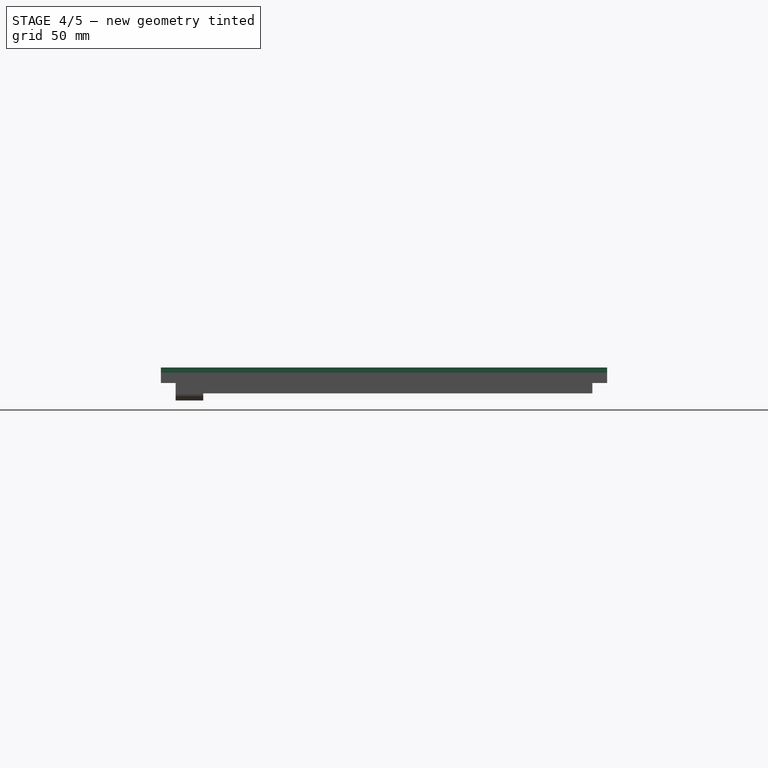
[diagram: stage 4 of 5 — right view after this stage's code; geometry added in this stage tinted green]
FEATURE [PartDesign::Body] Body001  label="plate_led_grid"
  Group = -> [Sketch001,Pad001,Sketch002,Pocket,MultiTransform,LinearPattern,LinearPattern001]
  Origin = -> Origin001
  Tip = -> MultiTransform
FEATURE [Sketcher::SketchObject] Sketch003
  AttachmentOffset = pos=(0,0,-3) rot=(0,0,1;0rad)
  FullyConstrained = true
  MapMode = 5
  Placement = pos=(0,0,-3) rot=(0,0,1;0rad)
  Support = -> [XY_Plane002]
  expr: .Constraints.side = Spreadsheet.num_leds * Spreadsheet.led_gap + 2 * Spreadsheet.back_panel_padding
  expr: Constraints[10] = .Constraints.side / 2
  expr: Constraints[11] = .Constraints.side / 2
  sketch-geometry (4):
    g0: LineSegment StartX=-129.6 StartY=129.6 StartZ=0 EndX=129.6 EndY=129.6 EndZ=0
    g1: LineSegment StartX=129.6 StartY=129.6 StartZ=0 EndX=129.6 EndY=-129.6 EndZ=0
    g2: LineSegment StartX=129.6 StartY=-129.6 StartZ=0 EndX=-129.6 EndY=-129.6 EndZ=0
    g3: LineSegment StartX=-129.6 StartY=-129.6 StartZ=0 EndX=-129.6 EndY=129.6 EndZ=0
  constraints (12):
    c: Coincident(g0,g1)
    c: Coincident(g1,g2)
    c: Coincident(g2,g3)
    c: Coincident(g3,g0)
    c: Horizontal(g0)
    c: Horizontal(g2)
    c: Vertical(g1)
    c: Vertical(g3)
    c: DistanceX(g2,g2) = 259.2  'side'
    c: Equal(g1,g2)
    c: DistanceX(g2,g-1) = 129.6
    c: DistanceY(g-1,g0) = 129.6
FEATURE [PartDesign::Pad] Pad002
  Direction = (0,0,-1)
  Length = 3
  Length2 = 10
  Profile = -> Sketch003
  ReferenceAxis = -> Sketch003 [N_Axis]
  Type = 0
  UseCustomVector = true
FEATURE [Sketcher::SketchObject] Sketch004
  FullyConstrained = true
  MapMode = 5
  Placement = pos=(0,0,-6) rot=(1,0,0;3.14159rad)
  Support = -> [Pad002]
  expr: .Constraints.origin = <<data_s>>.led_opening / 2 + (<<data_s>>.num_leds - 1) * <<data_s>>.led_gap / 2
  expr: Constraints[11] = .Constraints.origin
  expr: Constraints[9] = <<data_s>>.led_opening
  sketch-geometry (4):
    g0: LineSegment StartX=-97.8 StartY=97.8 StartZ=0 EndX=-84.8 EndY=97.8 EndZ=0
    g1: LineSegment StartX=-84.8 StartY=97.8 StartZ=0 EndX=-84.8 EndY=84.8 EndZ=0
    g2: LineSegment StartX=-84.8 StartY=84.8 StartZ=0 EndX=-97.8 EndY=84.8 EndZ=0
    g3: LineSegment StartX=-97.8 StartY=84.8 StartZ=0 EndX=-97.8 EndY=97.8 EndZ=0
  constraints (12):
    c: Coincident(g0,g1)
    c: Coincident(g1,g2)
    c: Coincident(g2,g3)
    c: Coincident(g3,g0)
    c: Horizontal(g0)
    c: Horizontal(g2)
    c: Vertical(g1)
    c: Vertical(g3)
    c: Equal(g0,g1)
    c: DistanceX(g2,g2) = 13
    c: DistanceX(g0,g-1) = 97.8  'origin'
    c: DistanceY(g-1,g0) = 97.8
FEATURE [PartDesign::LinearPattern] LinearPattern002
  Direction = -> Sketch004 [H_Axis]
  Length = 182.6
  Occurrences = 12
  expr: Length = <<data_s>>.led_gap * (<<data_s>>.num_leds - 1)
  expr: Occurrences = <<data_s>>.num_leds
FEATURE [PartDesign::LinearPattern] LinearPattern003
  Direction = -> Sketch004 [V_Axis]
  Length = 182.6
  Occurrences = 12
  Reversed = true
  expr: Length = <<data_s>>.led_gap * (<<data_s>>.num_leds - 1)
  expr: Occurrences = <<data_s>>.num_leds
FEATURE [PartDesign::Pocket] Pocket001
  BaseFeature = -> Pad002
  Direction = (0,0,1)
  Length = 5
  Length2 = 5
  Profile = -> Sketch004
  ReferenceAxis = -> Sketch004 [N_Axis]
  Type = 1
FEATURE [PartDesign::MultiTransform] MultiTransform001
  BaseFeature = -> Pocket001
  Originals = -> [Pocket001]
  Transformations = -> [LinearPattern002,LinearPattern003]
FEATURE [PartDesign::Body] Body002  label="plate_led_grid_2"
  Group = -> [Sketch003,Pad002,Sketch004,Pocket001,MultiTransform001,LinearPattern002,LinearPattern003,Sketch011,Pocket006]
  Origin = -> Origin002
  Tip = -> Pocket006
FEATURE [Sketcher::SketchObject] Sketch012
  FullyConstrained = true
  MapMode = 5
  Support = -> [XY_Plane003]
  expr: .Constraints.screw_dist = <<data_s>>.screw_dist
  expr: Constraints[0] = <<data_s>>.screw_diameter / 2
  expr: Constraints[10] = .Constraints.screw_dist
  expr: Constraints[11] = <<data_s>>.screw_diameter / 2
  expr: Constraints[2] = .Constraints.screw_dist
  expr: Constraints[3] = <<data_s>>.screw_diameter / 2
  expr: Constraints[4] = .Constraints.screw_dist
  expr: Constraints[5] = .Constraints.screw_dist
  expr: Constraints[7] = .Constraints.screw_dist
  expr: Constraints[8] = .Constraints.screw_dist
  expr: Constraints[9] = .Constraints.screw_dist
  sketch-geometry (4):
    g0: Circle CenterX=-112.5 CenterY=112.5 CenterZ=0 NormalX=0 NormalY=0 NormalZ=1 AngleXU=0 Radius=3
    g1: Circle CenterX=112.5 CenterY=112.5 CenterZ=0 NormalX=0 NormalY=0 NormalZ=1 AngleXU=0 Radius=3
    g2: Circle CenterX=112.5 CenterY=-112.5 CenterZ=0 NormalX=0 NormalY=0 NormalZ=1 AngleXU=0 Radius=3
    g3: Circle CenterX=-112.5 CenterY=-112.5 CenterZ=0 NormalX=0 NormalY=0 NormalZ=1 AngleXU=0 Radius=3
  constraints (12):
    c: Radius(g0) = 3
    c: DistanceX(g0,g-1) = 112.5  'screw_dist'
    c: DistanceY(g-1,g0) = 112.5
    c: Radius(g1) = 3
    c: DistanceX(g-1,g1) = 112.5
    c: DistanceY(g-1,g1) = 112.5
    c: Equal(g1,g2) = 3
    c: DistanceX(g-1,g2) = 112.5
    c: DistanceY(g2,g-1) = 112.5
    c: DistanceX(g3,g-1) = 112.5
    c: DistanceY(g3,g-1) = 112.5
    c: Radius(g3) = 3
FEATURE [PartDesign::Pocket] Pocket007
  BaseFeature = -> LinearPattern007
  Direction = (0,0,-1)
  Length = 5
  Length2 = 5
  Profile = -> Sketch012
  ReferenceAxis = -> Sketch012 [N_Axis]
  Type = 1
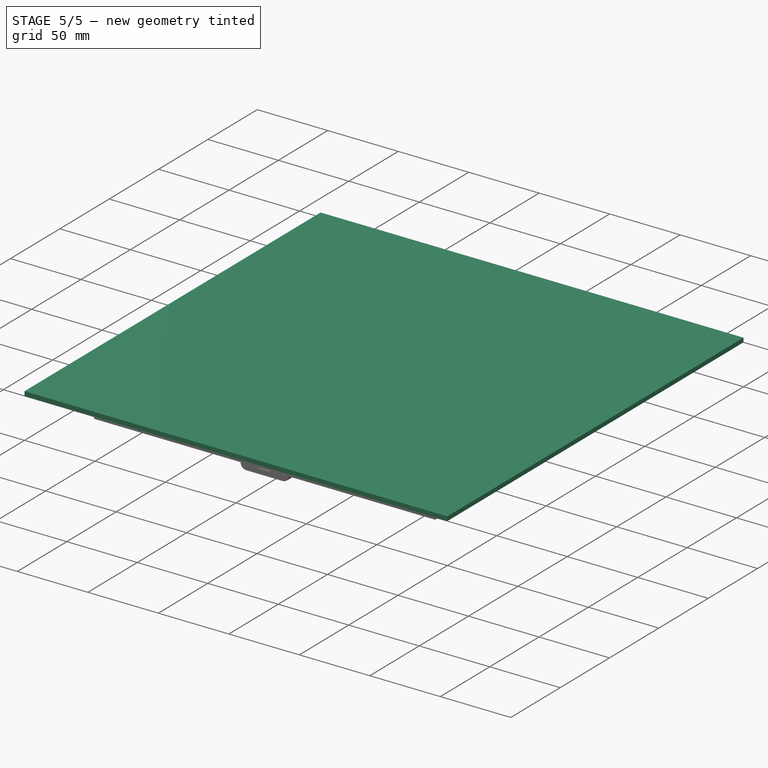
[diagram: stage 5 of 5 — iso view after this stage's code; geometry added in this stage tinted green]
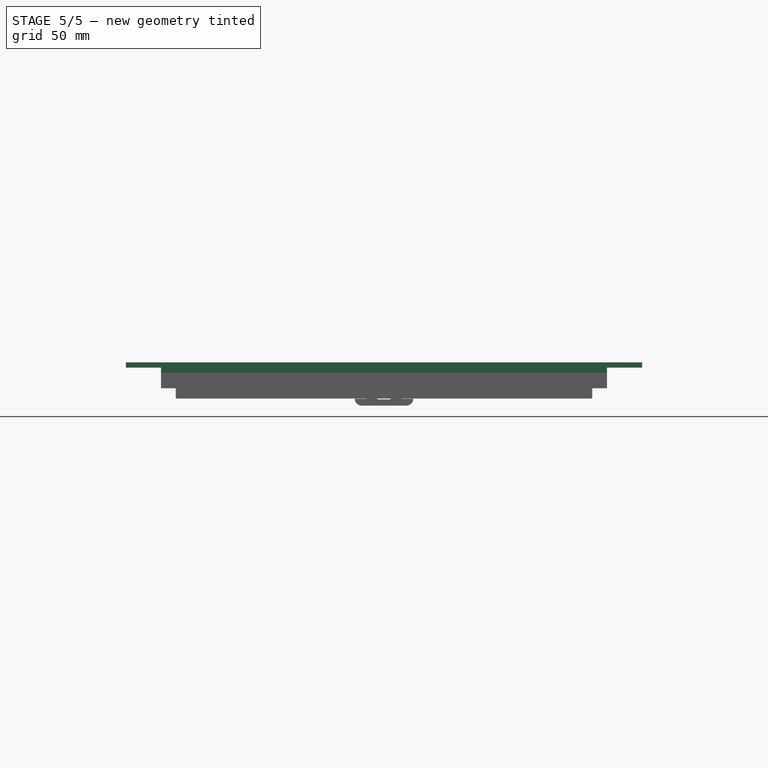
[diagram: stage 5 of 5 — front view after this stage's code; geometry added in this stage tinted green]
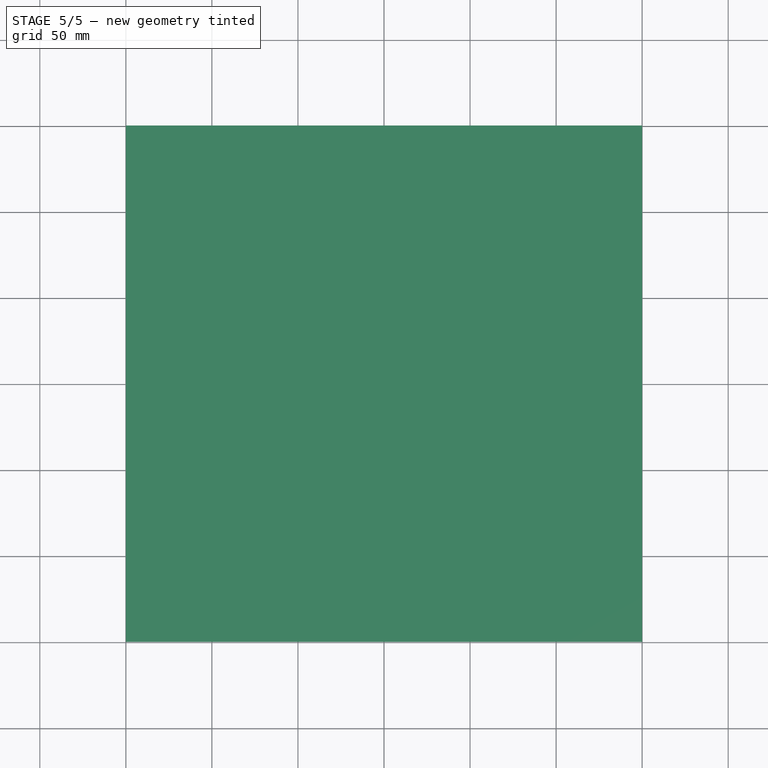
[diagram: stage 5 of 5 — top view after this stage's code; geometry added in this stage tinted green]
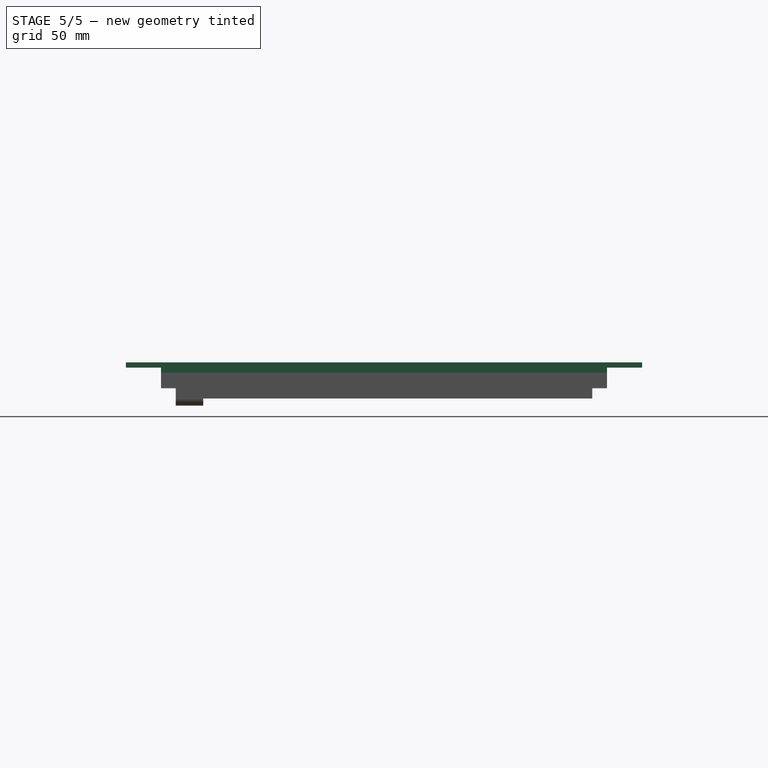
[diagram: stage 5 of 5 — right view after this stage's code; geometry added in this stage tinted green]
FEATURE [Sketcher::SketchObject] Sketch
  FullyConstrained = true
  MapMode = 5
  Support = -> [XY_Plane]
  expr: Constraints[10] = .Constraints.face_dim
  expr: Constraints[8] = .Constraints.face_dim / 2
  expr: Constraints[9] = .Constraints.face_dim / 2
  sketch-geometry (4):
    g0: LineSegment StartX=-150 StartY=150 StartZ=0 EndX=150 EndY=150 EndZ=0
    g1: LineSegment StartX=150 StartY=150 StartZ=0 EndX=150 EndY=-150 EndZ=0
    g2: LineSegment StartX=150 StartY=-150 StartZ=0 EndX=-150 EndY=-150 EndZ=0
    g3: LineSegment StartX=-150 StartY=-150 StartZ=0 EndX=-150 EndY=150 EndZ=0
  constraints (12):
    c: Coincident(g0,g1)
    c: Coincident(g1,g2)
    c: Coincident(g2,g3)
    c: Coincident(g3,g0)
    c: Horizontal(g0)
    c: Horizontal(g2)
    c: Vertical(g1)
    c: Vertical(g3)
    c: DistanceX(g2,g-1) = 150
    c: DistanceY(g-1,g0) = 150
    c: Distance(g1) = 300
    c: Distance(g2) = 300  'face_dim'
FEATURE [PartDesign::Pad] Pad
  Direction = (0,0,1)
  Length = 3
  Length2 = 10
  Profile = -> Sketch
  ReferenceAxis = -> Sketch [N_Axis]
  Type = 0
FEATURE [PartDesign::Body] Body  label="glass_face"
  Group = -> [Sketch,Pad]
  Origin = -> Origin
  Tip = -> Pad
FEATURE [Spreadsheet::Sheet] Spreadsheet  label="data_s"
  cells = A1=num_leds; B1(num_leds)=12; A2=led_gap; B2(led_gap)=16.6; A3=back_panel_padding; B3(back_panel_padding)=30; A4=led_opening; B4(led_opening)=13; A5=led_strip_width; B5(led_strip_w)=10; A6=led_strip_w_pad; B6(led_strip_w_pad)=11; C6=with padding; A7=led_strip_end_pad; B7(led_strip_end_pad)=8; A8=strip_end_thickness; B8(strip_end_thickness)=10; A9=screw_diameter; B9(screw_diameter)=6; A10=screw_dist; B10(screw_dist)=112.5
FEATURE [Sketcher::SketchObject] Sketch001
  FullyConstrained = true
  MapMode = 5
  Support = -> [XY_Plane001]
  expr: .Constraints.side = Spreadsheet.num_leds * Spreadsheet.led_gap + 2 * Spreadsheet.back_panel_padding
  expr: Constraints[10] = .Constraints.side / 2
  expr: Constraints[11] = .Constraints.side / 2
  sketch-geometry (4):
    g0: LineSegment StartX=-129.6 StartY=129.6 StartZ=0 EndX=129.6 EndY=129.6 EndZ=0
    g1: LineSegment StartX=129.6 StartY=129.6 StartZ=0 EndX=129.6 EndY=-129.6 EndZ=0
    g2: LineSegment StartX=129.6 StartY=-129.6 StartZ=0 EndX=-129.6 EndY=-129.6 EndZ=0
    g3: LineSegment StartX=-129.6 StartY=-129.6 StartZ=0 EndX=-129.6 EndY=129.6 EndZ=0
  constraints (12):
    c: Coincident(g0,g1)
    c: Coincident(g1,g2)
    c: Coincident(g2,g3)
    c: Coincident(g3,g0)
    c: Horizontal(g0)
    c: Horizontal(g2)
    c: Vertical(g1)
    c: Vertical(g3)
    c: DistanceX(g2,g2) = 259.2  'side'
    c: Equal(g1,g2)
    c: DistanceX(g2,g-1) = 129.6
    c: DistanceY(g-1,g0) = 129.6
FEATURE [PartDesign::Pad] Pad001
  Direction = (0,0,-1)
  Length = 3
  Length2 = 10
  Profile = -> Sketch001
  ReferenceAxis = -> Sketch001 [N_Axis]
  Type = 0
  UseCustomVector = true
FEATURE [Sketcher::SketchObject] Sketch002
  FullyConstrained = true
  MapMode = 5
  Placement = pos=(0,0,-3) rot=(1,0,0;3.14159rad)
  Support = -> [Pad001]
  expr: .Constraints.origin = <<data_s>>.led_opening / 2 + (<<data_s>>.num_leds - 1) * <<data_s>>.led_gap / 2
  expr: Constraints[11] = .Constraints.origin
  expr: Constraints[9] = <<data_s>>.led_opening
  sketch-geometry (4):
    g0: LineSegment StartX=-97.8 StartY=97.8 StartZ=0 EndX=-84.8 EndY=97.8 EndZ=0
    g1: LineSegment StartX=-84.8 StartY=97.8 StartZ=0 EndX=-84.8 EndY=84.8 EndZ=0
    g2: LineSegment StartX=-84.8 StartY=84.8 StartZ=0 EndX=-97.8 EndY=84.8 EndZ=0
    g3: LineSegment StartX=-97.8 StartY=84.8 StartZ=0 EndX=-97.8 EndY=97.8 EndZ=0
  constraints (12):
    c: Coincident(g0,g1)
    c: Coincident(g1,g2)
    c: Coincident(g2,g3)
    c: Coincident(g3,g0)
    c: Horizontal(g0)
    c: Horizontal(g2)
    c: Vertical(g1)
    c: Vertical(g3)
    c: Equal(g0,g1)
    c: DistanceX(g2,g2) = 13
    c: DistanceX(g0,g-1) = 97.8  'origin'
    c: DistanceY(g-1,g0) = 97.8
FEATURE [PartDesign::Pocket] Pocket
  BaseFeature = -> Pad001
  Direction = (0,0,1)
  Length = 5
  Length2 = 5
  Profile = -> Sketch002
  ReferenceAxis = -> Sketch002 [N_Axis]
  Type = 1
FEATURE [PartDesign::LinearPattern] LinearPattern
  Direction = -> Sketch002 [H_Axis]
  Length = 182.6
  Occurrences = 12
  expr: Length = <<data_s>>.led_gap * (<<data_s>>.num_leds - 1)
  expr: Occurrences = <<data_s>>.num_leds
FEATURE [PartDesign::LinearPattern] LinearPattern001
  Direction = -> Sketch002 [V_Axis]
  Length = 182.6
  Occurrences = 12
  Reversed = true
  expr: Length = <<data_s>>.led_gap * (<<data_s>>.num_leds - 1)
  expr: Occurrences = <<data_s>>.num_leds
FEATURE [PartDesign::MultiTransform] MultiTransform
  BaseFeature = -> Pocket
  Originals = -> [Pocket]
  Transformations = -> [LinearPattern,LinearPattern001]
FEATURE [Sketcher::SketchObject] Sketch011
  FullyConstrained = true
  MapMode = 5
  Support = -> [XY_Plane002]
  expr: .Constraints.screw_dist = <<data_s>>.screw_dist
  expr: Constraints[0] = <<data_s>>.screw_diameter / 2
  expr: Constraints[10] = .Constraints.screw_dist
  expr: Constraints[11] = <<data_s>>.screw_diameter / 2
  expr: Constraints[2] = .Constraints.screw_dist
  expr: Constraints[3] = <<data_s>>.screw_diameter / 2
  expr: Constraints[4] = .Constraints.screw_dist
  expr: Constraints[5] = .Constraints.screw_dist
  expr: Constraints[7] = .Constraints.screw_dist
  expr: Constraints[8] = .Constraints.screw_dist
  expr: Constraints[9] = .Constraints.screw_dist
  sketch-geometry (4):
    g0: Circle CenterX=-112.5 CenterY=112.5 CenterZ=0 NormalX=0 NormalY=0 NormalZ=1 AngleXU=0 Radius=3
    g1: Circle CenterX=112.5 CenterY=112.5 CenterZ=0 NormalX=0 NormalY=0 NormalZ=1 AngleXU=0 Radius=3
    g2: Circle CenterX=112.5 CenterY=-112.5 CenterZ=0 NormalX=0 NormalY=0 NormalZ=1 AngleXU=0 Radius=3
    g3: Circle CenterX=-112.5 CenterY=-112.5 CenterZ=0 NormalX=0 NormalY=0 NormalZ=1 AngleXU=0 Radius=3
  constraints (12):
    c: Radius(g0) = 3
    c: DistanceX(g0,g-1) = 112.5  'screw_dist'
    c: DistanceY(g-1,g0) = 112.5
    c: Radius(g1) = 3
    c: DistanceX(g-1,g1) = 112.5
    c: DistanceY(g-1,g1) = 112.5
    c: Equal(g1,g2) = 3
    c: DistanceX(g-1,g2) = 112.5
    c: DistanceY(g2,g-1) = 112.5
    c: DistanceX(g3,g-1) = 112.5
    c: DistanceY(g3,g-1) = 112.5
    c: Radius(g3) = 3
FEATURE [PartDesign::Pocket] Pocket006
  BaseFeature = -> MultiTransform001
  Direction = (0,0,-1)
  Length = 5
  Length2 = 5
  Profile = -> Sketch011
  ReferenceAxis = -> Sketch011 [N_Axis]
  Type = 1
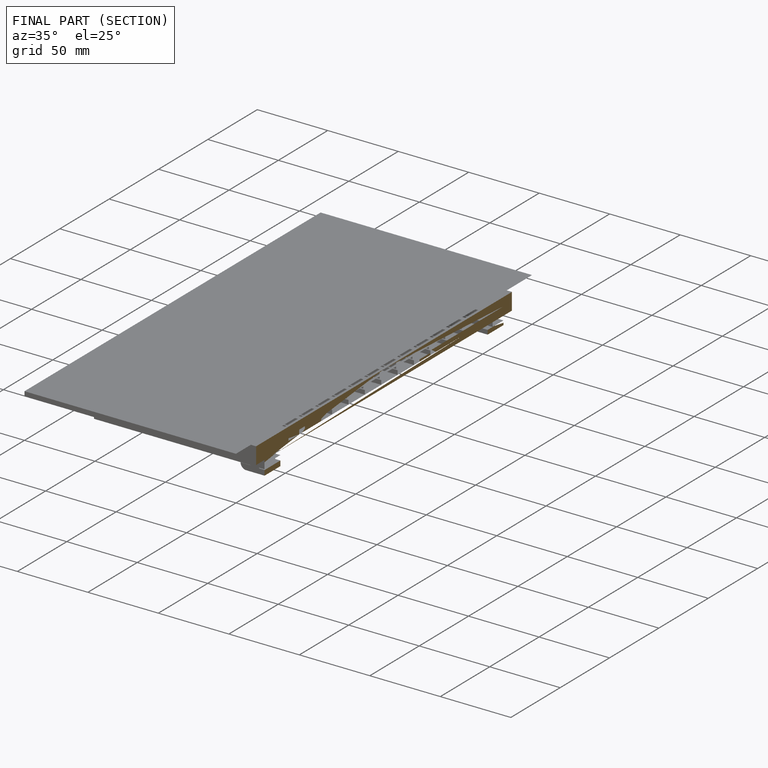
[diagram: finished part — half-section view (interior)]
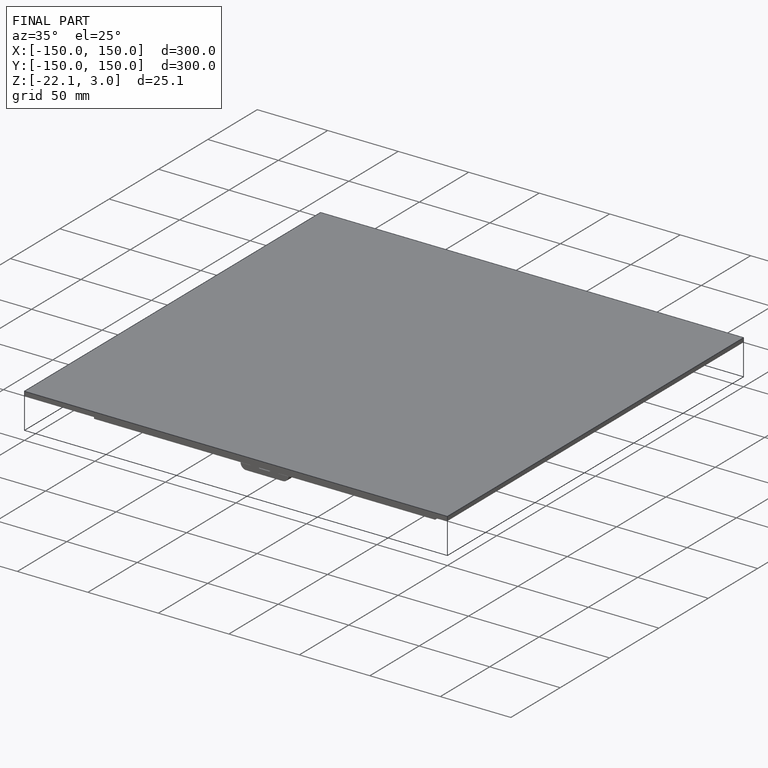
[diagram: finished part — iso view with bounding-box wireframe]
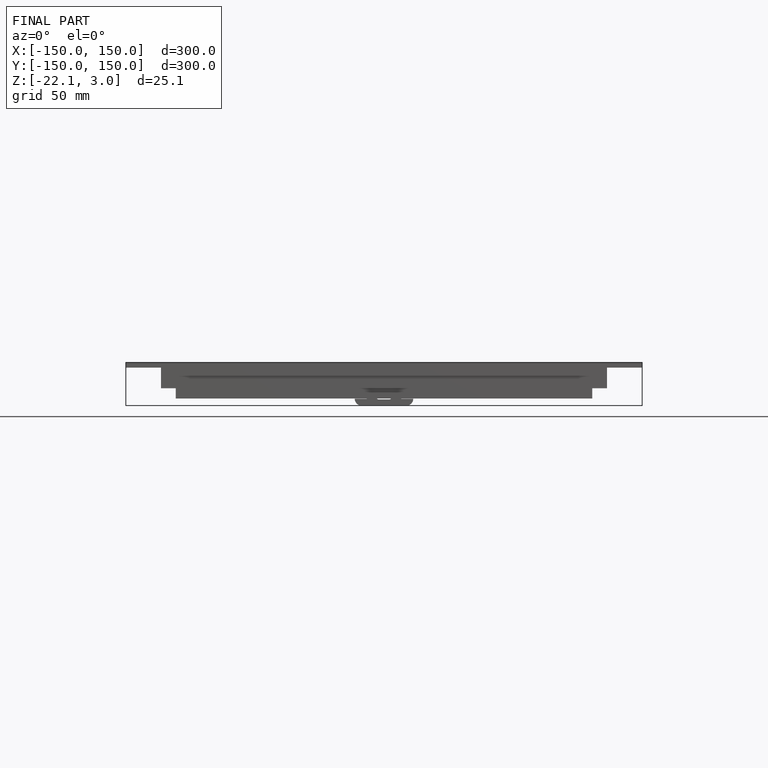
[diagram: finished part — front view with bounding-box wireframe]
